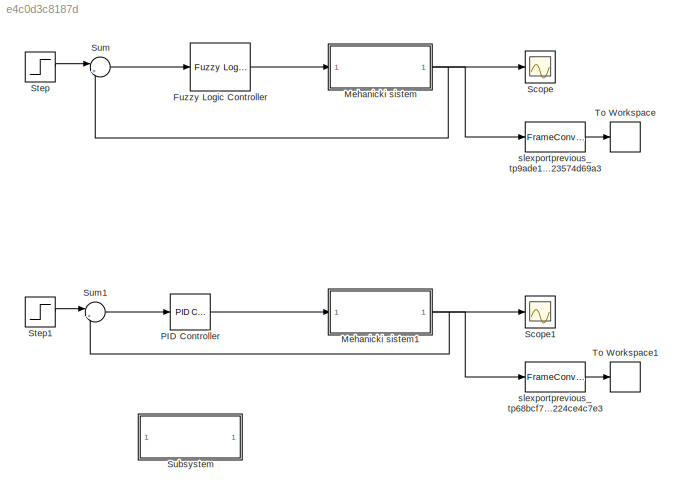
MODEL slx_e4c0d3c8187d
KIND model
BLOCK [Reference] Fuzzy Logic  Controller  REF=fuzblock/Fuzzy Logic   (lib defined in mdl_858b3b3e7478)
Controller
  FIS = Mehs
  Ports = [1, 1]
  RTWMemSecDataConstants = Inherit from model
  RTWMemSecDataInternal = Inherit from model
  RTWMemSecDataParameters = Inherit from model
  RTWMemSecFuncExecute = Inherit from model
  RTWMemSecFuncInitTerm = Inherit from model
  SourceBlock = fuzblock/Fuzzy Logic \nController
  SourceType = Fuzzy Inference System
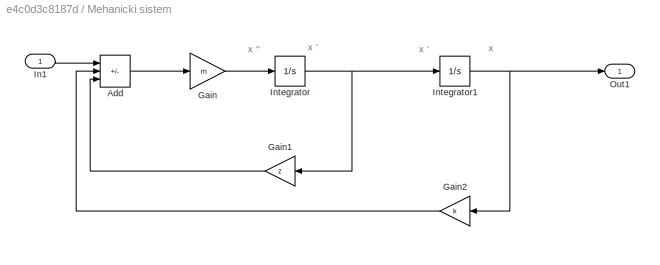
BLOCK [SubSystem] Mehanicki sistem
  FunctionWithSeparateData = off
  MaskHideContents = off
  MinAlgLoopOccurrences = off
  Opaque = off
  Ports = [1, 1]
  PropExecContextOutsideSubsystem = off
  RTWSystemCode = Auto
  RequestExecContextInheritance = off
BLOCK [Sum] Mehanicki sistem/Add
  IconShape = rectangular
  Inputs = +--
  Ports = [3, 1]
BLOCK [Gain] Mehanicki sistem/Gain
  Gain = m
BLOCK [Gain] Mehanicki sistem/Gain1
  Gain = z
BLOCK [Gain] Mehanicki sistem/Gain2
  Gain = k
BLOCK [Inport] Mehanicki sistem/In1
BLOCK [Integrator] Mehanicki sistem/Integrator
  Ports = [1, 1]
BLOCK [Integrator] Mehanicki sistem/Integrator1
  Ports = [1, 1]
BLOCK [Outport] Mehanicki sistem/Out1
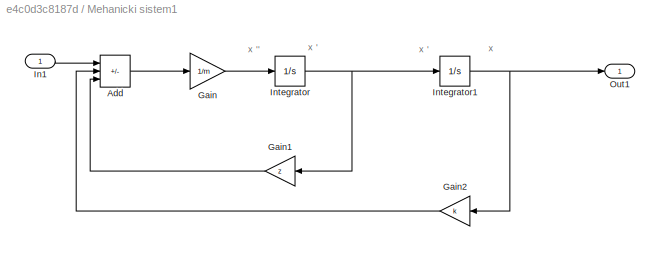
BLOCK [SubSystem] Mehanicki sistem1
  FunctionWithSeparateData = off
  MaskHideContents = off
  MinAlgLoopOccurrences = off
  Opaque = off
  Ports = [1, 1]
  PropExecContextOutsideSubsystem = off
  RTWSystemCode = Auto
  RequestExecContextInheritance = off
BLOCK [Sum] Mehanicki sistem1/Add
  IconShape = rectangular
  Inputs = +--
  Ports = [3, 1]
BLOCK [Gain] Mehanicki sistem1/Gain
  Gain = 1/m
BLOCK [Gain] Mehanicki sistem1/Gain1
  Gain = z
BLOCK [Gain] Mehanicki sistem1/Gain2
  Gain = k
BLOCK [Inport] Mehanicki sistem1/In1
BLOCK [Integrator] Mehanicki sistem1/Integrator
  Ports = [1, 1]
BLOCK [Integrator] Mehanicki sistem1/Integrator1
  Ports = [1, 1]
BLOCK [Outport] Mehanicki sistem1/Out1
BLOCK [Reference] PID Controller  REF=simulink/Continuous/PID Controller
  AntiWindupMode = none
  Controller = PID
  ControllerParametersSource = internal
  D = 13.2061899071902
  DGainOutDataTypeStr = Inherit: Inherit via internal rule
  DOutMax = []
  DOutMin = []
  DParamDataTypeStr = Inherit: Inherit via internal rule
  DParamMax = []
  DParamMin = []
  DProdOutDataTypeStr = Inherit: Inherit via internal rule
  DifferentiatorICPrevScaledInput = 0
  DifferentiatorOutDataTypeStr = Inherit: Inherit via internal rule
  DifferentiatorOutMax = []
  DifferentiatorOutMin = []
  ExternalReset = none
  FilterContinuousStateAttributes = ''
  FilterMethod = Forward Euler
  FilterOutDataTypeStr = Inherit: Inherit via internal rule
  FilterOutMax = []
  FilterOutMin = []
  FilterRTWStateStorageClass = Auto
  FilterStateMustResolveToSignalObject = off
  Form = Parallel
  I = 0.829836993663022
  IGainOutDataTypeStr = Inherit: Inherit via internal rule
  IOutMax = []
  IOutMin = []
  IParamDataTypeStr = Inherit: Inherit via internal rule
  IParamMax = []
  IParamMin = []
  IProdOutDataTypeStr = Inherit: Inherit via internal rule
  IgnoreLimit = off
  InitialConditionForFilter = 0
  InitialConditionForIntegrator = 0
  InitialConditionSource = internal
  IntegratorContinuousStateAttributes = ''
  IntegratorMethod = Forward Euler
  IntegratorOutDataTypeStr = Inherit: Inherit via internal rule
  IntegratorOutMax = []
  IntegratorOutMin = []
  IntegratorRTWStateStorageClass = Auto
  IntegratorStateMustResolveToSignalObject = off
  Kb = 1
  KbOutDataTypeStr = Inherit: Inherit via internal rule
  KbOutMax = []
  KbOutMin = []
  KbParamDataTypeStr = Inherit: Inherit via internal rule
  KbParamMax = []
  KbParamMin = []
  Kt = 1
  KtOutDataTypeStr = Inherit: Inherit via internal rule
  KtOutMax = []
  KtOutMin = []
  KtParamDataTypeStr = Inherit: Inherit via internal rule
  KtParamMax = []
  KtParamMin = []
  LimitOutput = off
  LinearizeAsGain = on
  LockScale = off
  LowerSaturationLimit = -inf
  N = 166.910508167407
  NGainOutDataTypeStr = Inherit: Inherit via internal rule
  NOutMax = []
  NOutMin = []
  NParamDataTypeStr = Inherit: Inherit via internal rule
  NParamMax = []
  NParamMin = []
  NProdOutDataTypeStr = Inherit: Inherit via internal rule
  P = 7.80036144704785
  PGainOutDataTypeStr = Inherit: Inherit via internal rule
  POutMax = []
  POutMin = []
  PParamDataTypeStr = Inherit: Inherit via internal rule
  PParamMax = []
  PParamMin = []
  PProdOutDataTypeStr = Inherit: Inherit via internal rule
  Ports = [1, 1]
  RTWMemSecDataConstants = Inherit from model
  RTWMemSecDataInternal = Inherit from model
  RTWMemSecDataParameters = Inherit from model
  RTWMemSecFuncExecute = Inherit from model
  RTWMemSecFuncInitTerm = Inherit from model
  RndMeth = Floor
  SampleTime = -1
  SaturateOnIntegerOverflow = off
  SaturationOutDataTypeStr = Inherit: Same as input
  SaturationOutMax = []
  SaturationOutMin = []
  SourceBlock = simulink/Continuous/PID Controller
  SourceType = PID 1dof
  SumAccumDataTypeStr = Inherit: Inherit via internal rule
  SumDAccumDataTypeStr = Inherit: Inherit via internal rule
  SumDOutDataTypeStr = Inherit: Inherit via internal rule
  SumDOutMax = []
  SumDOutMin = []
  SumI1AccumDataTypeStr = Inherit: Inherit via internal rule
  SumI1OutDataTypeStr = Inherit: Inherit via internal rule
  SumI1OutMax = []
  SumI1OutMin = []
  SumI2AccumDataTypeStr = Inherit: Inherit via internal rule
  SumI2OutDataTypeStr = Inherit: Inherit via internal rule
  SumI2OutMax = []
  SumI2OutMin = []
  SumI3AccumDataTypeStr = Inherit: Inherit via internal rule
  SumI3OutDataTypeStr = Inherit: Inherit via internal rule
  SumI3OutMax = []
  SumI3OutMin = []
  SumOutDataTypeStr = Inherit: Inherit via internal rule
  SumOutMax = []
  SumOutMin = []
  TimeDomain = Continuous-time
  TrackingMode = off
  UpperSaturationLimit = inf
  UseFilter = on
  ZeroCross = on
BLOCK [Scope] Scope
  DataFormat = StructureWithTime
  Decimation = 1
  Floating = off
  Grid = on
  LimitDataPoints = on
  MaxDataPoints = 5000
  NumInputPorts = 1
  Ports = [1]
  SampleInput = off
  SampleTime = -1
  SaveName = ScopeData
  SaveToWorkspace = off
  ShowLegends = off
  TickLabels = OneTimeTick
  TimeRange = auto
  YMax = 114.34671
  YMin = -12.70519
  ZoomMode = on
BLOCK [Scope] Scope1
  DataFormat = StructureWithTime
  Decimation = 1
  Floating = off
  Grid = on
  LimitDataPoints = on
  MaxDataPoints = 5000
  NumInputPorts = 1
  Ports = [1]
  SampleInput = off
  SampleTime = -1
  SaveName = ScopeData1
  SaveToWorkspace = off
  ShowLegends = off
  TickLabels = OneTimeTick
  TimeRange = auto
  YMax = 126.93751
  YMin = -14.10417
  ZoomMode = on
BLOCK [Step] Step
  SampleTime = 0
  Time = 0
BLOCK [Step] Step1
  After = 100
  SampleTime = 0
  Time = 0
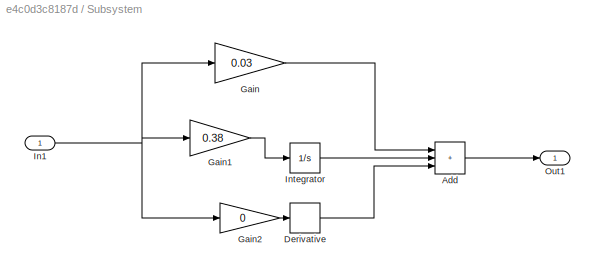
BLOCK [SubSystem] Subsystem
  FunctionWithSeparateData = off
  MaskHideContents = off
  MinAlgLoopOccurrences = off
  Opaque = off
  Ports = [1, 1]
  PropExecContextOutsideSubsystem = off
  RTWSystemCode = Auto
  RequestExecContextInheritance = off
BLOCK [Sum] Subsystem/Add
  IconShape = rectangular
  Inputs = +++
  Ports = [3, 1]
BLOCK [Derivative] Subsystem/Derivative
BLOCK [Gain] Subsystem/Gain
  Gain = 0.03
BLOCK [Gain] Subsystem/Gain1
  Gain = 0.38
BLOCK [Gain] Subsystem/Gain2
  Gain = 0
BLOCK [Inport] Subsystem/In1
BLOCK [Integrator] Subsystem/Integrator
  Ports = [1, 1]
BLOCK [Outport] Subsystem/Out1
BLOCK [Sum] Sum
  Inputs = |+-
  Ports = [2, 1]
BLOCK [Sum] Sum1
  Inputs = |+-
  Ports = [2, 1]
BLOCK [ToWorkspace] To Workspace
  MaxDataPoints = inf
  Ports = [1]
  SampleTime = -1
  VariableName = silaFuzzy
BLOCK [ToWorkspace] To Workspace1
  MaxDataPoints = inf
  Ports = [1]
  SampleTime = -1
  VariableName = silaPID
BLOCK [FrameConversion] slexportprevious_tp68bcf7c0_3ffd_434e_987b_a5224ce4c7e3
  OutFrame = Sample-based
  Ports = [1, 1]
BLOCK [FrameConversion] slexportprevious_tp9ade1618_1513_47cc_9329_0523574d69a3
  OutFrame = Sample-based
  Ports = [1, 1]
ANNOTATION Mehanicki sistem: x
ANNOTATION Mehanicki sistem: x '
ANNOTATION Mehanicki sistem: x ''
ANNOTATION Mehanicki sistem1: x
ANNOTATION Mehanicki sistem1: x '
ANNOTATION Mehanicki sistem1: x ''
LINE Fuzzy Logic  Controller:1 -> Mehanicki sistem:1
LINE Mehanicki sistem/Add:1 -> Mehanicki sistem/Gain:1
LINE Mehanicki sistem/Gain1:1 -> Mehanicki sistem/Add:3
LINE Mehanicki sistem/Gain2:1 -> Mehanicki sistem/Add:2
LINE Mehanicki sistem/Gain:1 -> Mehanicki sistem/Integrator:1
LINE Mehanicki sistem/In1:1 -> Mehanicki sistem/Add:1
NET Mehanicki sistem/Integrator1:1 -> Mehanicki sistem/Gain2:1, Mehanicki sistem/Out1:1
NET Mehanicki sistem/Integrator:1 -> Mehanicki sistem/Gain1:1, Mehanicki sistem/Integrator1:1
LINE Mehanicki sistem1/Add:1 -> Mehanicki sistem1/Gain:1
LINE Mehanicki sistem1/Gain1:1 -> Mehanicki sistem1/Add:3
LINE Mehanicki sistem1/Gain2:1 -> Mehanicki sistem1/Add:2
LINE Mehanicki sistem1/Gain:1 -> Mehanicki sistem1/Integrator:1
LINE Mehanicki sistem1/In1:1 -> Mehanicki sistem1/Add:1
NET Mehanicki sistem1/Integrator1:1 -> Mehanicki sistem1/Gain2:1, Mehanicki sistem1/Out1:1
NET Mehanicki sistem1/Integrator:1 -> Mehanicki sistem1/Gain1:1, Mehanicki sistem1/Integrator1:1
NET Mehanicki sistem1:1 -> Scope1:1, Sum1:2, slexportprevious_tp68bcf7c0_3ffd_434e_987b_a5224ce4c7e3:1
NET Mehanicki sistem:1 -> Scope:1, Sum:2, slexportprevious_tp9ade1618_1513_47cc_9329_0523574d69a3:1
LINE PID Controller:1 -> Mehanicki sistem1:1
LINE Step1:1 -> Sum1:1
LINE Step:1 -> Sum:1
LINE Subsystem/Add:1 -> Subsystem/Out1:1
LINE Subsystem/Derivative:1 -> Subsystem/Add:3
LINE Subsystem/Gain1:1 -> Subsystem/Integrator:1
LINE Subsystem/Gain2:1 -> Subsystem/Derivative:1
LINE Subsystem/Gain:1 -> Subsystem/Add:1
NET Subsystem/In1:1 -> Subsystem/Gain1:1, Subsystem/Gain2:1, Subsystem/Gain:1
LINE Subsystem/Integrator:1 -> Subsystem/Add:2
LINE Sum1:1 -> PID Controller:1
LINE Sum:1 -> Fuzzy Logic  Controller:1
LINE slexportprevious_tp68bcf7c0_3ffd_434e_987b_a5224ce4c7e3:1 -> To Workspace1:1
LINE slexportprevious_tp9ade1618_1513_47cc_9329_0523574d69a3:1 -> To Workspace:1
note: NET lines group one-source signal fan-out (src -> all destinations, sorted); 1:1 wires keep LINE
